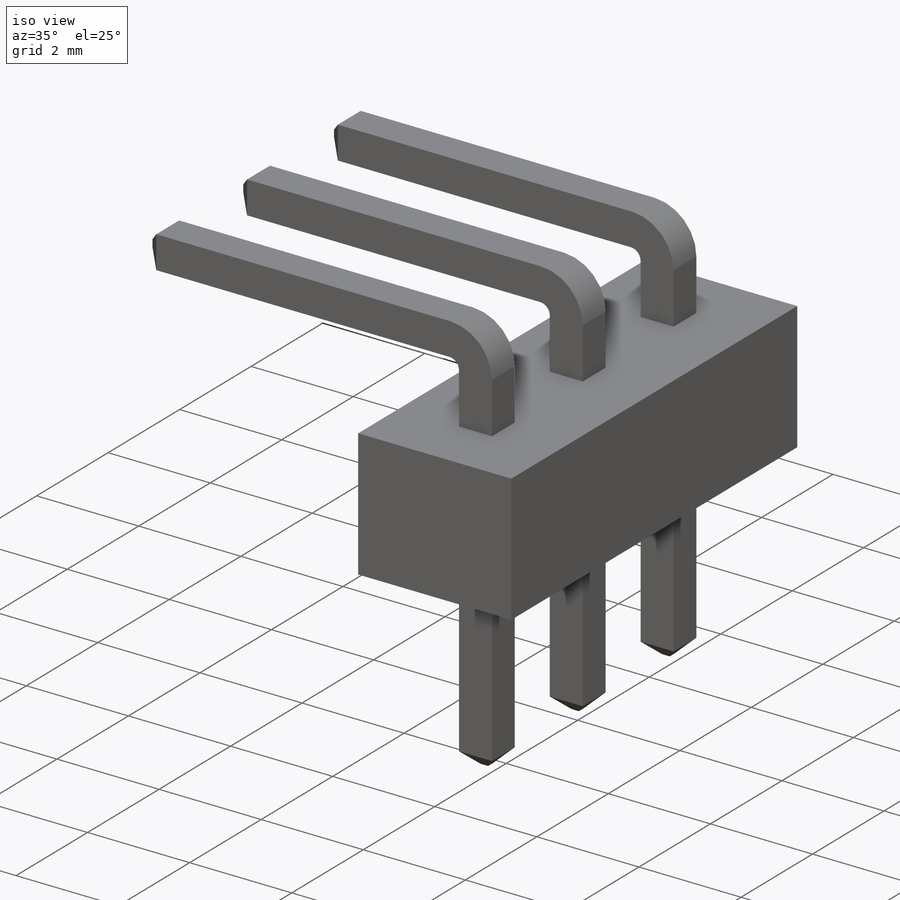
[diagram: iso view]
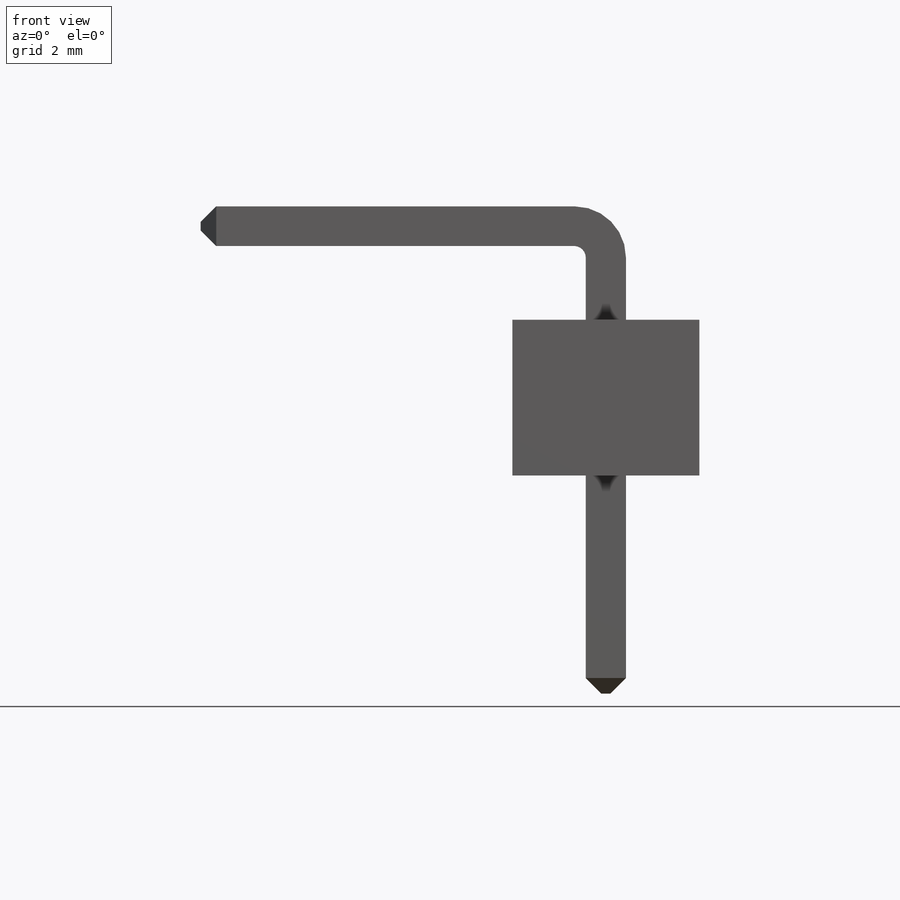
[diagram: front view]
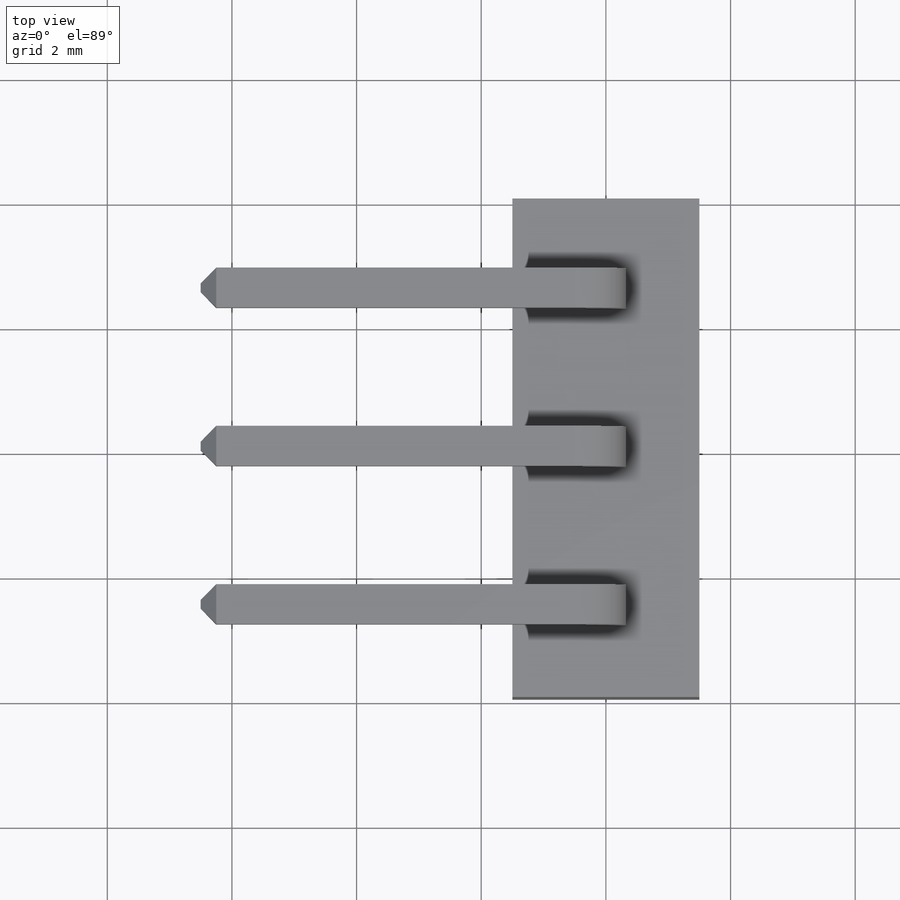
[diagram: top view]
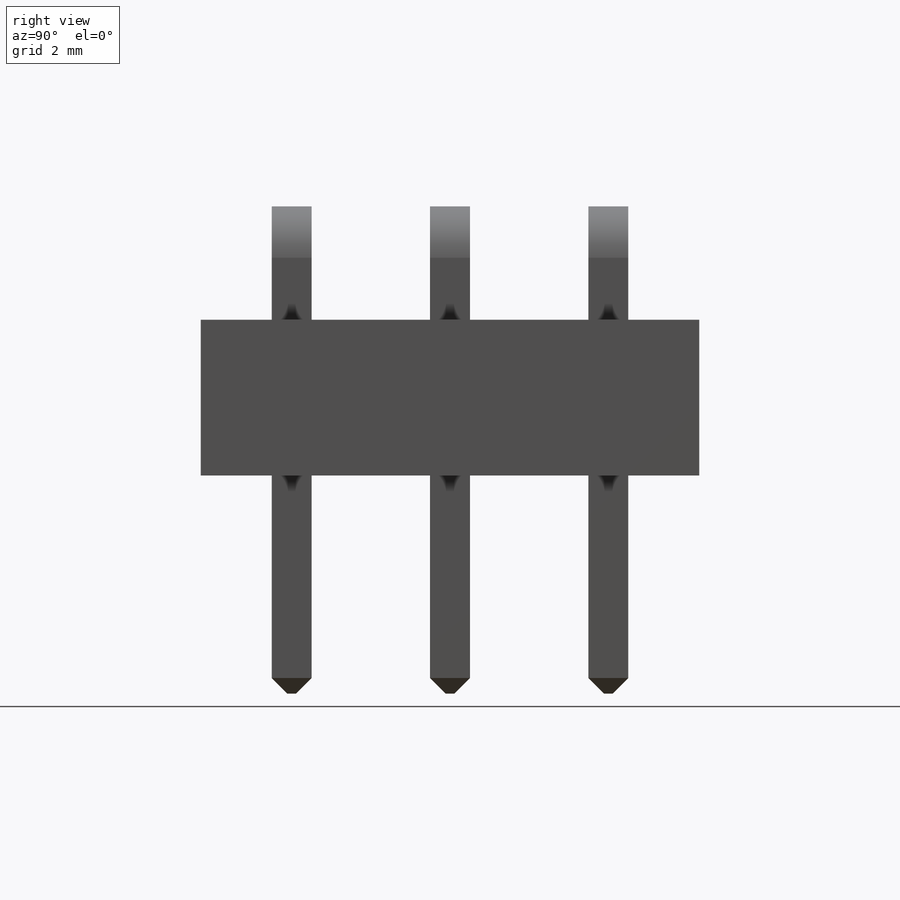
[diagram: right view]
SOLIDWORKS PART (.sldprt)
format: sldprt  version: not decoded by parser v0  size: 230,912 bytes
history: native  units: mm
features: sketch x2, extrude x2, material x1, plane x1, pattern_linear x1, chamfer x1 (+15 scaffold rows collapsed)
feature tree (23):
  scaffold x15  (default folders/planes/origin — collapsed)
  material  "Material <not specified>"
  sketch  "Sketch1"  dims[D1=3.0mm D2=2.5mm]
  extrude  "Extrude1"  Depth=8mm
  plane  "Plane4"  Offset=1.14mm
  sketch  "Sketch2"  dims[D1=0.645mm D2=0.995mm D3=0.26mm D4=0.18mm D5=1.162mm D6=0.82mm D7=6.0mm D8=3.5mm]
  extrude  "Extrude2"  Depth=0.64mm
  pattern_linear  "LPattern1"  Count1=3 Count2=1 Spacing1=2.54mm Spacing2=50mm
  chamfer  "Chamfer1"  Distance=0.25mm Angle=45deg
decode coverage: 6 of 6 modeling features carry decoded parameters
note: suppression state not decoded; provenance and decode notes live in map.json
